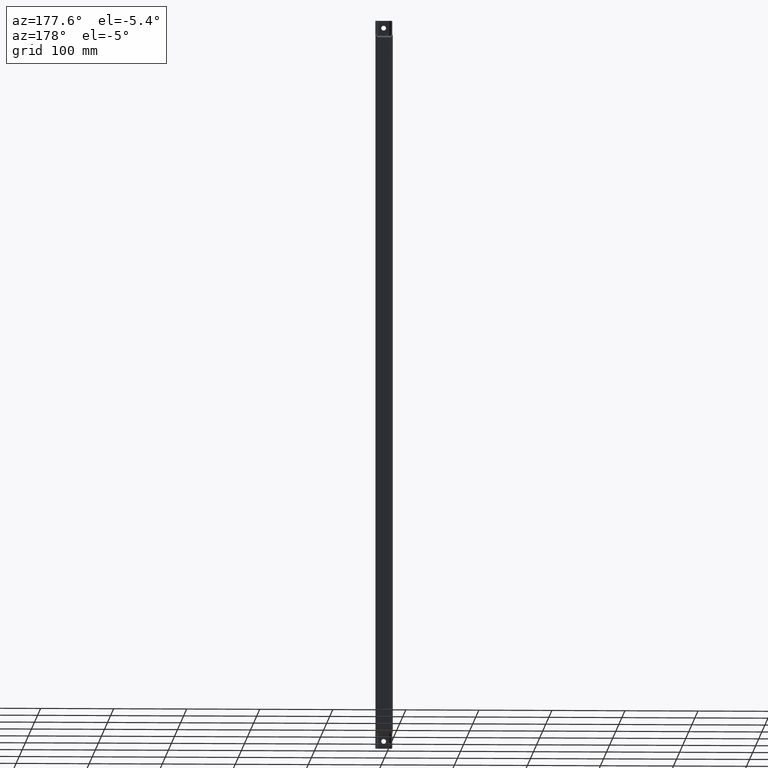
[diagram: clean part render]
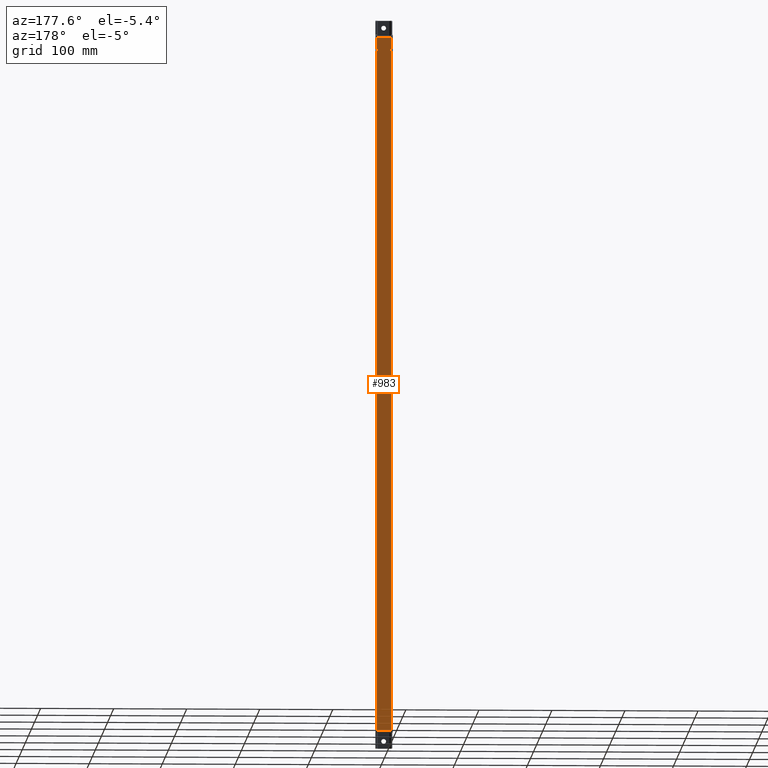
[diagram: same view with one face highlighted and labeled with its STEP entity id]
A machine part, auxiliary view. The second image highlights one B-rep face of the part: STEP entity #983.
In plain terms, the highlighted planar face has unit normal (0, 1, -0).
Its self-contained STEP definition (entity closure, byte-faithful):
#46=LINE('',#1574,#134);
#47=LINE('',#1577,#135);
#48=LINE('',#1579,#136);
#49=LINE('',#1581,#137);
#134=VECTOR('',#1246,1000.);
#135=VECTOR('',#1247,1000.);
#136=VECTOR('',#1248,1000.);
#137=VECTOR('',#1249,1000.);
#274=ORIENTED_EDGE('',*,*,#513,.F.);
#275=ORIENTED_EDGE('',*,*,#515,.F.);
#276=ORIENTED_EDGE('',*,*,#558,.T.);
#277=ORIENTED_EDGE('',*,*,#559,.T.);
#278=ORIENTED_EDGE('',*,*,#560,.T.);
#279=ORIENTED_EDGE('',*,*,#561,.T.);
#513=EDGE_CURVE('',#657,#657,#753,.T.);
#515=EDGE_CURVE('',#659,#659,#755,.T.);
#558=EDGE_CURVE('',#700,#701,#46,.T.);
#559=EDGE_CURVE('',#701,#702,#47,.T.);
#560=EDGE_CURVE('',#702,#703,#48,.T.);
#561=EDGE_CURVE('',#703,#700,#49,.T.);
#657=VERTEX_POINT('',#1478);
#659=VERTEX_POINT('',#1484);
#700=VERTEX_POINT('',#1575);
#701=VERTEX_POINT('',#1576);
#702=VERTEX_POINT('',#1578);
#703=VERTEX_POINT('',#1580);
#753=CIRCLE('',#1046,2.);
#755=CIRCLE('',#1050,2.);
#825=EDGE_LOOP('',(#274));
#826=EDGE_LOOP('',(#275));
#827=EDGE_LOOP('',(#276,#277,#278,#279));
#893=FACE_BOUND('',#825,.T.);
#894=FACE_BOUND('',#826,.T.);
#895=FACE_BOUND('',#827,.T.);
#952=PLANE('',#1073);
#983=ADVANCED_FACE('',(#893,#894,#895),#952,.T.);
#1046=AXIS2_PLACEMENT_3D('',#1477,#1164,#1165);
#1050=AXIS2_PLACEMENT_3D('',#1483,#1172,#1173);
#1073=AXIS2_PLACEMENT_3D('',#1573,#1244,#1245);
#1164=DIRECTION('',(4.06163832661068E-16,1.,-3.32698173895069E-15));
#1165=DIRECTION('',(9.21833731195405E-17,-3.32698173895069E-15,-1.));
#1172=DIRECTION('',(4.06163832661068E-16,1.,-3.32698173895069E-15));
#1173=DIRECTION('',(9.21833731195405E-17,-3.32698173895069E-15,-1.));
#1244=DIRECTION('',(4.06163832661068E-16,1.,-3.32494788514936E-15));
#1245=DIRECTION('',(-1.,4.06163832661068E-16,6.76398658185478E-32));
#1246=DIRECTION('',(-1.21257418434899E-16,-3.32494788514936E-15,-1.));
#1247=DIRECTION('',(-1.,4.06163832661068E-16,6.76398658185534E-32));
#1248=DIRECTION('',(1.21257418434899E-16,3.32494788514936E-15,1.));
#1249=DIRECTION('',(1.,-4.06163832661068E-16,-6.76398658185534E-32));
#1477=CARTESIAN_POINT('',(-7.00000000000002,-10.9999999999976,458.5));
#1478=CARTESIAN_POINT('',(-7.00000000000002,-10.9999999999976,456.5));
#1483=CARTESIAN_POINT('',(6.99999999999998,-10.9999999999976,458.5));
#1484=CARTESIAN_POINT('',(6.99999999999998,-10.9999999999976,456.5));
#1573=CARTESIAN_POINT('',(4.66701312594012E-15,-10.9999999999987,-3.78058567638503E-14));
#1574=CARTESIAN_POINT('',(10.,-10.9999999999975,350.5));
#1575=CARTESIAN_POINT('',(9.99999999999999,-10.9999999999984,475.5));
#1576=CARTESIAN_POINT('',(9.99999999999994,-10.999999999999,-475.5));
#1577=CARTESIAN_POINT('',(-10.0000000000001,-10.999999999999,-475.5));
#1578=CARTESIAN_POINT('',(-10.,-10.999999999999,-475.5));
#1579=CARTESIAN_POINT('',(-9.99999999999995,-10.9999999999975,350.5));
#1580=CARTESIAN_POINT('',(-9.99999999999994,-10.9999999999971,475.5));
#1581=CARTESIAN_POINT('',(9.99999999999999,-10.9999999999984,475.5));